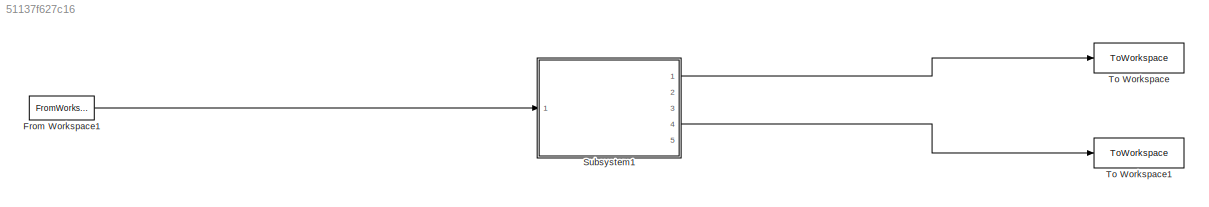
MODEL slx_51137f627c16
KIND model
CONFIG AbsTol = 1e-07
CONFIG EnableMultiTasking = off
CONFIG FixedStep = auto
CONFIG MaxStep = auto
CONFIG MinStep = auto
CONFIG RelTol = 1e-3
CONFIG SampleTimeConstraint = Unconstrained
CONFIG SolverName = ode23t
CONFIG StartTime = 0.0
CONFIG StopTime = 5
WORKSPACE source: mxarray member
WORKSPACE l = 2
WORKSPACE wfb = [0 0 0]
BLOCK [FromWorkspace] From Workspace1
  SampleTime = dt
  VariableName = u_in
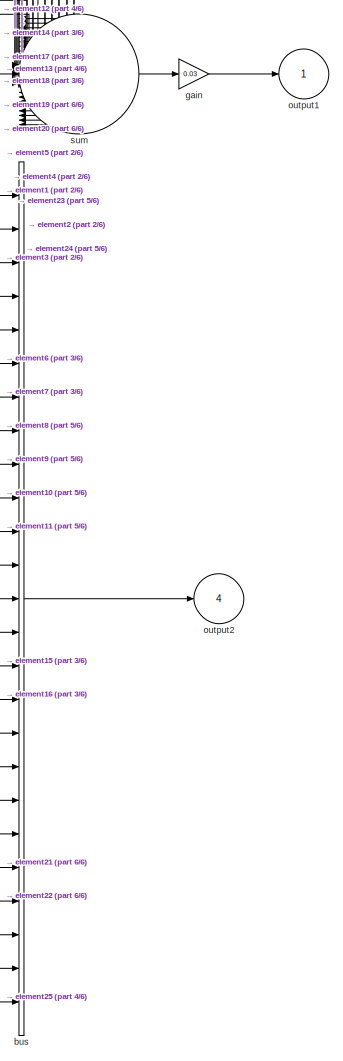
[diagram: Subsystem1 - part 1/6, top right region]
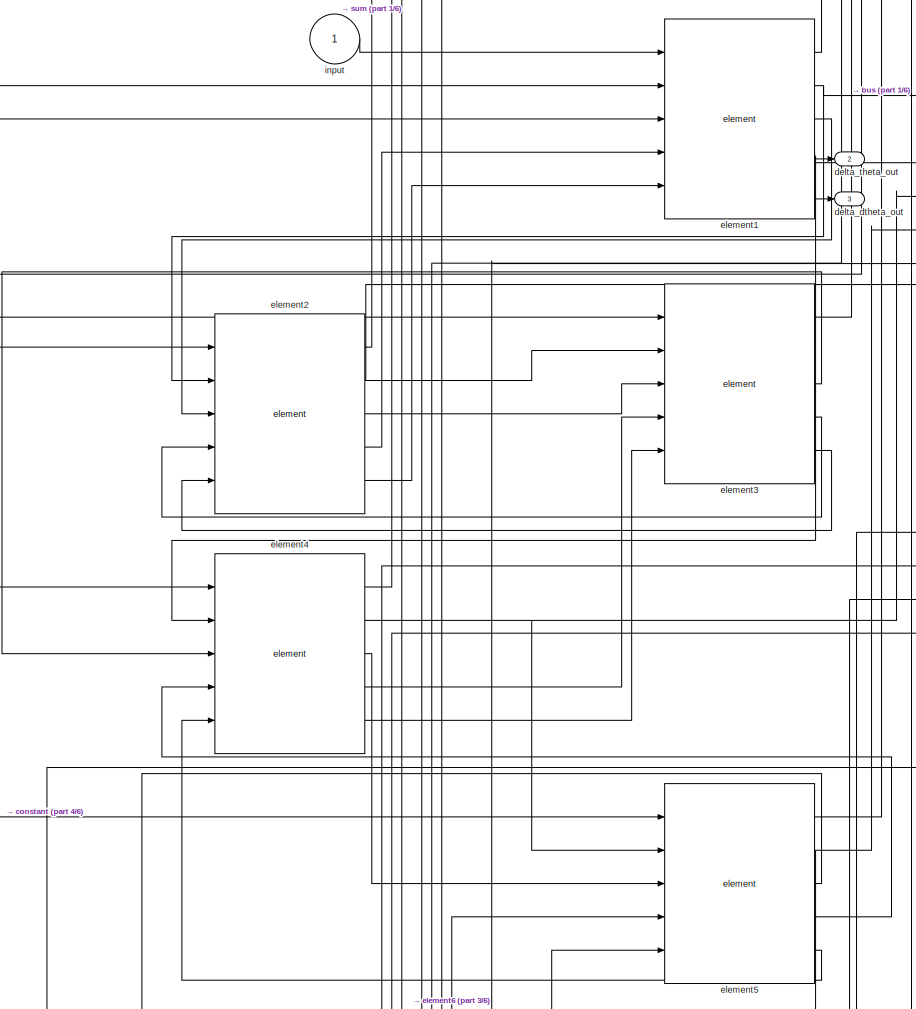
[diagram: Subsystem1 - part 2/6, top center region]
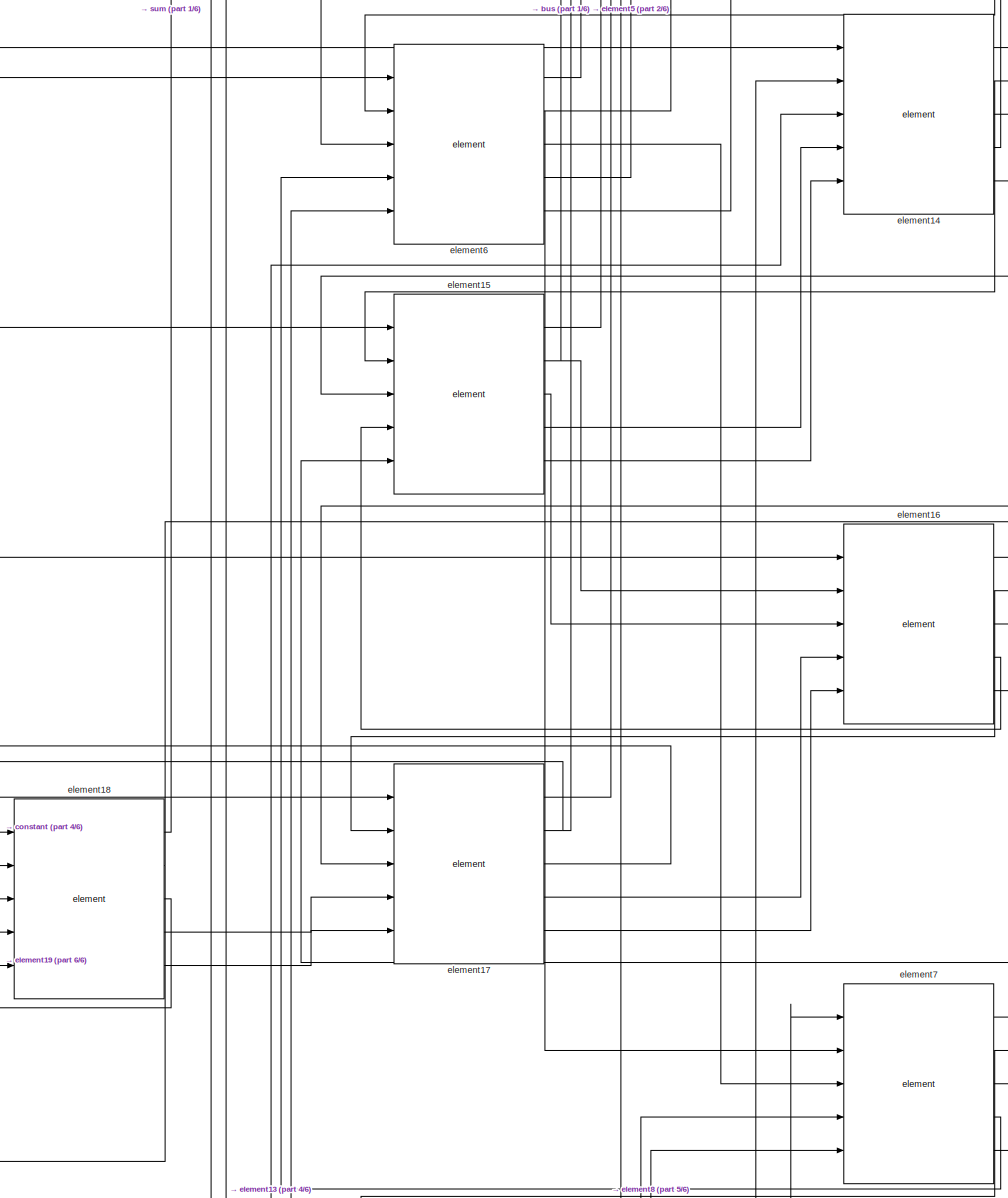
[diagram: Subsystem1 - part 3/6, central region]
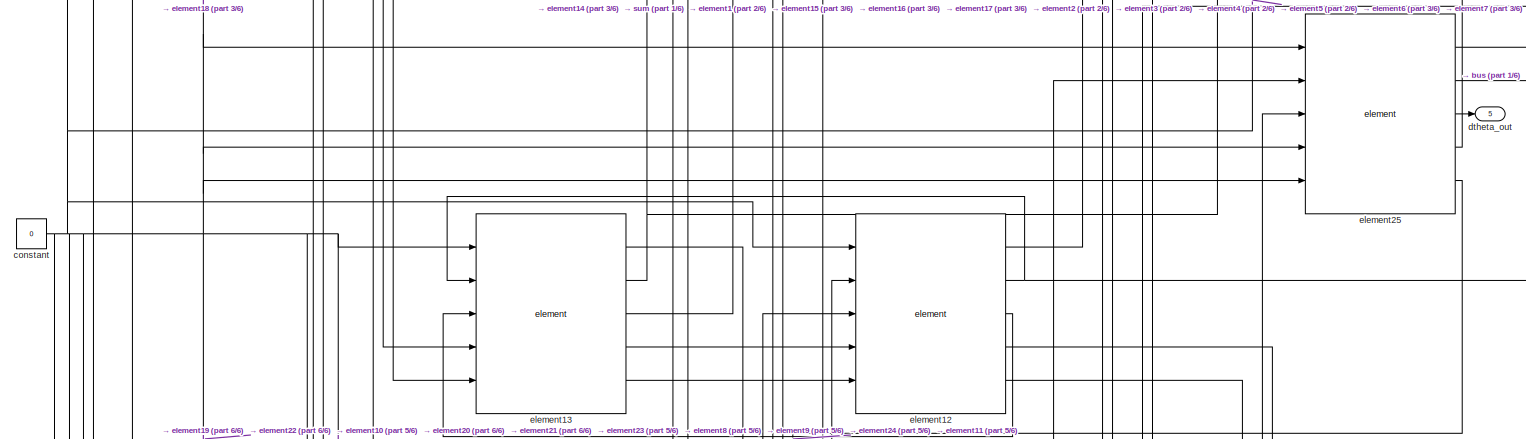
[diagram: Subsystem1 - part 4/6, central region]
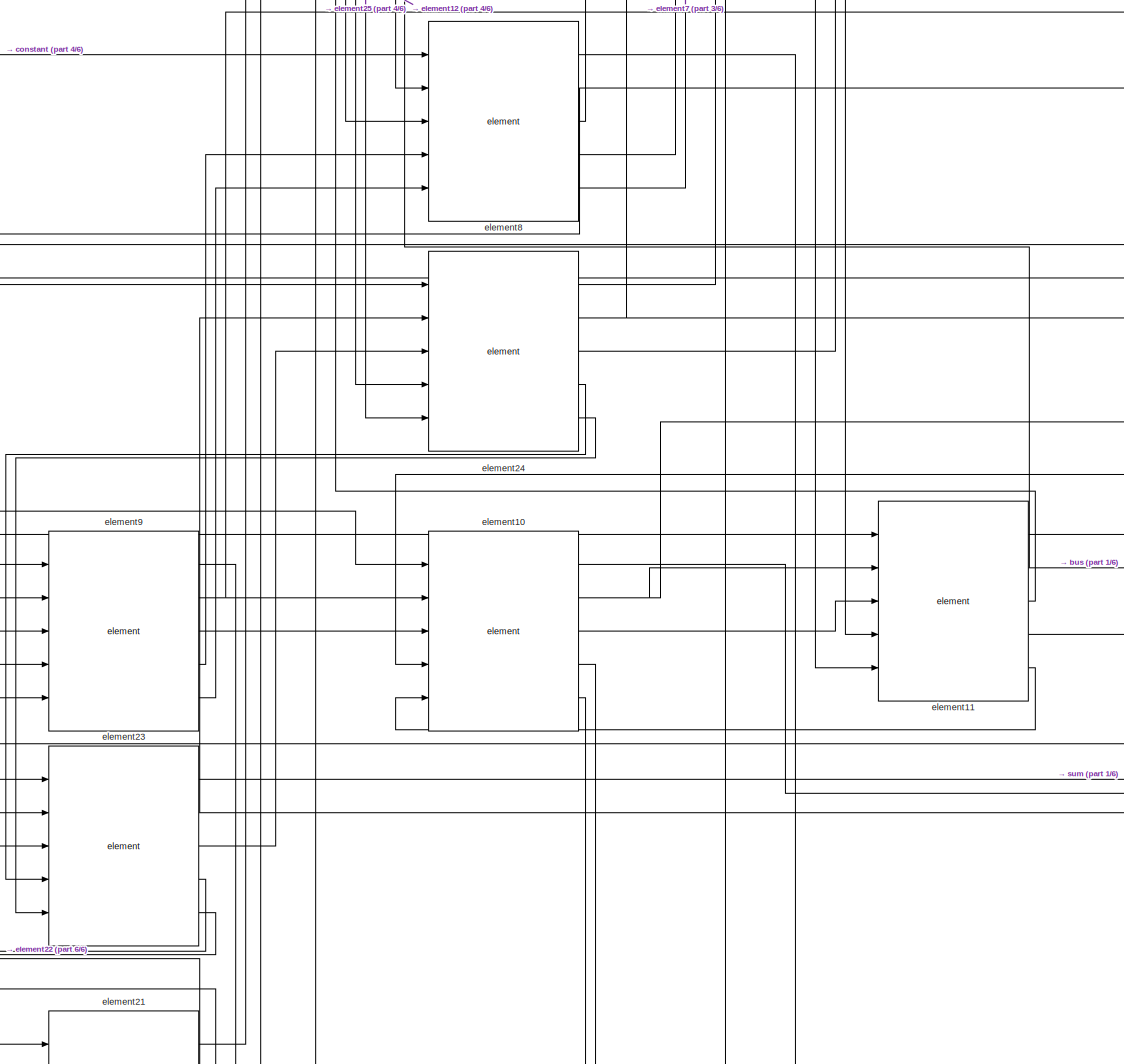
[diagram: Subsystem1 - part 5/6, bottom center region]
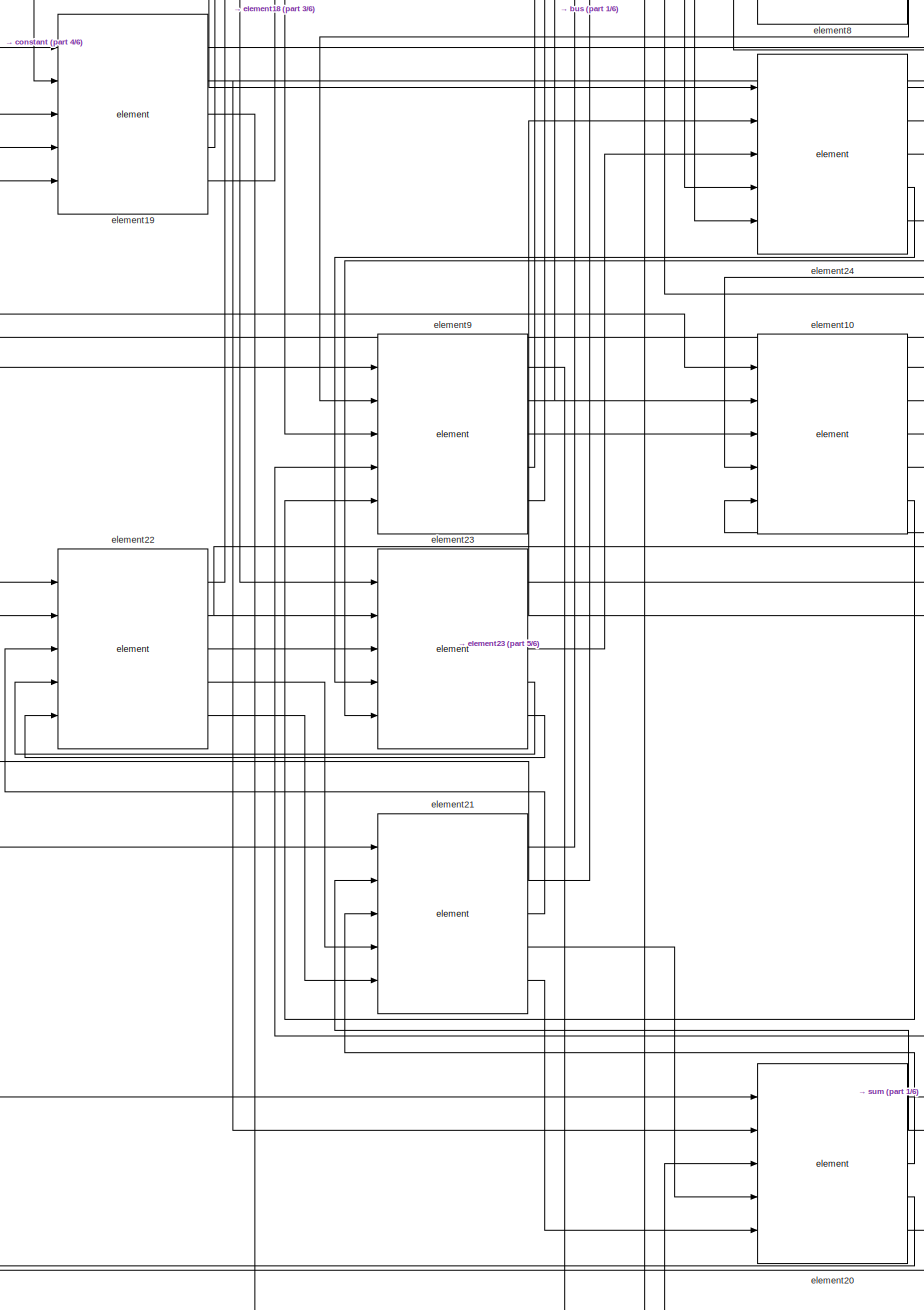
[diagram: Subsystem1 - part 6/6, bottom left region]
BLOCK [SubSystem] Subsystem1
  Ports = [1, 5]
  RequestExecContextInheritance = off
BLOCK [BusCreator] Subsystem1/bus
  DisplayOption = bar
  InheritFromInputs = on
  Inputs = 25
  Ports = [25, 1]
BLOCK [Constant] Subsystem1/constant
  Value = 0
BLOCK [Outport] Subsystem1/delta_dtheta_out
  Port = 3
BLOCK [Outport] Subsystem1/delta_theta_out
  Port = 2
BLOCK [Outport] Subsystem1/dtheta_out
  Port = 5
BLOCK [Reference] Subsystem1/element1  REF=lib_beam/element  (lib defined in slx_f71b63bb8612)
  Ports = [5, 5]
  SourceBlock = lib_beam/element
BLOCK [Reference] Subsystem1/element10  REF=lib_beam/element  (lib defined in slx_f71b63bb8612)
  Ports = [5, 5]
  SourceBlock = lib_beam/element
BLOCK [Reference] Subsystem1/element11  REF=lib_beam/element  (lib defined in slx_f71b63bb8612)
  Ports = [5, 5]
  SourceBlock = lib_beam/element
BLOCK [Reference] Subsystem1/element12  REF=lib_beam/element  (lib defined in slx_f71b63bb8612)
  Ports = [5, 5]
  SourceBlock = lib_beam/element
BLOCK [Reference] Subsystem1/element13  REF=lib_beam/element  (lib defined in slx_f71b63bb8612)
  Ports = [5, 5]
  SourceBlock = lib_beam/element
BLOCK [Reference] Subsystem1/element14  REF=lib_beam/element  (lib defined in slx_f71b63bb8612)
  Ports = [5, 5]
  SourceBlock = lib_beam/element
BLOCK [Reference] Subsystem1/element15  REF=lib_beam/element  (lib defined in slx_f71b63bb8612)
  Ports = [5, 5]
  SourceBlock = lib_beam/element
BLOCK [Reference] Subsystem1/element16  REF=lib_beam/element  (lib defined in slx_f71b63bb8612)
  Ports = [5, 5]
  SourceBlock = lib_beam/element
BLOCK [Reference] Subsystem1/element17  REF=lib_beam/element  (lib defined in slx_f71b63bb8612)
  Ports = [5, 5]
  SourceBlock = lib_beam/element
BLOCK [Reference] Subsystem1/element18  REF=lib_beam/element  (lib defined in slx_f71b63bb8612)
  Ports = [5, 5]
  SourceBlock = lib_beam/element
BLOCK [Reference] Subsystem1/element19  REF=lib_beam/element  (lib defined in slx_f71b63bb8612)
  Ports = [5, 5]
  SourceBlock = lib_beam/element
BLOCK [Reference] Subsystem1/element2  REF=lib_beam/element  (lib defined in slx_f71b63bb8612)
  Ports = [5, 5]
  SourceBlock = lib_beam/element
BLOCK [Reference] Subsystem1/element20  REF=lib_beam/element  (lib defined in slx_f71b63bb8612)
  Ports = [5, 5]
  SourceBlock = lib_beam/element
BLOCK [Reference] Subsystem1/element21  REF=lib_beam/element  (lib defined in slx_f71b63bb8612)
  Ports = [5, 5]
  SourceBlock = lib_beam/element
BLOCK [Reference] Subsystem1/element22  REF=lib_beam/element  (lib defined in slx_f71b63bb8612)
  Ports = [5, 5]
  SourceBlock = lib_beam/element
BLOCK [Reference] Subsystem1/element23  REF=lib_beam/element  (lib defined in slx_f71b63bb8612)
  Ports = [5, 5]
  SourceBlock = lib_beam/element
BLOCK [Reference] Subsystem1/element24  REF=lib_beam/element  (lib defined in slx_f71b63bb8612)
  Ports = [5, 5]
  SourceBlock = lib_beam/element
BLOCK [Reference] Subsystem1/element25  REF=lib_beam/element  (lib defined in slx_f71b63bb8612)
  Ports = [5, 5]
  SourceBlock = lib_beam/element
BLOCK [Reference] Subsystem1/element3  REF=lib_beam/element  (lib defined in slx_f71b63bb8612)
  Ports = [5, 5]
  SourceBlock = lib_beam/element
BLOCK [Reference] Subsystem1/element4  REF=lib_beam/element  (lib defined in slx_f71b63bb8612)
  Ports = [5, 5]
  SourceBlock = lib_beam/element
BLOCK [Reference] Subsystem1/element5  REF=lib_beam/element  (lib defined in slx_f71b63bb8612)
  Ports = [5, 5]
  SourceBlock = lib_beam/element
BLOCK [Reference] Subsystem1/element6  REF=lib_beam/element  (lib defined in slx_f71b63bb8612)
  Ports = [5, 5]
  SourceBlock = lib_beam/element
BLOCK [Reference] Subsystem1/element7  REF=lib_beam/element  (lib defined in slx_f71b63bb8612)
  Ports = [5, 5]
  SourceBlock = lib_beam/element
BLOCK [Reference] Subsystem1/element8  REF=lib_beam/element  (lib defined in slx_f71b63bb8612)
  Ports = [5, 5]
  SourceBlock = lib_beam/element
BLOCK [Reference] Subsystem1/element9  REF=lib_beam/element  (lib defined in slx_f71b63bb8612)
  Ports = [5, 5]
  SourceBlock = lib_beam/element
BLOCK [Gain] Subsystem1/gain
  Gain = 0.03
BLOCK [Inport] Subsystem1/input
BLOCK [Outport] Subsystem1/output1
BLOCK [Outport] Subsystem1/output2
  Port = 4
BLOCK [Sum] Subsystem1/sum
  Inputs = 25
  Ports = [25, 1]
BLOCK [ToWorkspace] To Workspace
  FixptAsFi = on
  MaxDataPoints = inf
  Ports = [1]
  SampleTime = dt
  SaveFormat = Timeseries
  VariableName = y
BLOCK [ToWorkspace] To Workspace1
  FixptAsFi = on
  MaxDataPoints = inf
  Ports = [1]
  SampleTime = dt
  SaveFormat = Timeseries
  VariableName = theta
LINE From Workspace1:1 -> Subsystem1:1
LINE Subsystem1/bus:1 -> Subsystem1/output2:1
NET Subsystem1/constant:1 -> Subsystem1/element10:1, Subsystem1/element11:1, Subsystem1/element12:1, Subsystem1/element13:1, Subsystem1/element14:1, Subsystem1/element15:1, Subsystem1/element16:1, Subsystem1/element17:1, Subsystem1/element18:1, Subsystem1/element19:1, Subsystem1/element1:2, Subsystem1/element1:3, Subsystem1/element20:1, Subsystem1/element21:1, Subsystem1/element22:1, Subsystem1/element23:1, Subsystem1/element24:1, Subsystem1/element25:1, Subsystem1/element25:4, Subsystem1/element25:5, Subsystem1/element2:1, Subsystem1/element3:1, Subsystem1/element4:1, Subsystem1/element5:1, Subsystem1/element6:1, Subsystem1/element7:1, Subsystem1/element8:1, Subsystem1/element9:1
LINE Subsystem1/element10:1 -> Subsystem1/sum:10
NET Subsystem1/element10:2 -> Subsystem1/bus:10, Subsystem1/element11:2
LINE Subsystem1/element10:3 -> Subsystem1/element11:3
LINE Subsystem1/element10:4 -> Subsystem1/element9:4
LINE Subsystem1/element10:5 -> Subsystem1/element9:5
LINE Subsystem1/element11:1 -> Subsystem1/sum:11
NET Subsystem1/element11:2 -> Subsystem1/bus:11, Subsystem1/element12:2
LINE Subsystem1/element11:3 -> Subsystem1/element12:3
LINE Subsystem1/element11:4 -> Subsystem1/element10:4
LINE Subsystem1/element11:5 -> Subsystem1/element10:5
LINE Subsystem1/element12:1 -> Subsystem1/sum:12
NET Subsystem1/element12:2 -> Subsystem1/bus:12, Subsystem1/element13:2
LINE Subsystem1/element12:3 -> Subsystem1/element13:3
LINE Subsystem1/element12:4 -> Subsystem1/element11:4
LINE Subsystem1/element12:5 -> Subsystem1/element11:5
LINE Subsystem1/element13:1 -> Subsystem1/sum:13
NET Subsystem1/element13:2 -> Subsystem1/bus:13, Subsystem1/element14:2
LINE Subsystem1/element13:3 -> Subsystem1/element14:3
LINE Subsystem1/element13:4 -> Subsystem1/element12:4
LINE Subsystem1/element13:5 -> Subsystem1/element12:5
LINE Subsystem1/element14:1 -> Subsystem1/sum:14
NET Subsystem1/element14:2 -> Subsystem1/bus:14, Subsystem1/element15:2
LINE Subsystem1/element14:3 -> Subsystem1/element15:3
LINE Subsystem1/element14:4 -> Subsystem1/element13:4
LINE Subsystem1/element14:5 -> Subsystem1/element13:5
LINE Subsystem1/element15:1 -> Subsystem1/sum:15
NET Subsystem1/element15:2 -> Subsystem1/bus:15, Subsystem1/element16:2
LINE Subsystem1/element15:3 -> Subsystem1/element16:3
LINE Subsystem1/element15:4 -> Subsystem1/element14:4
LINE Subsystem1/element15:5 -> Subsystem1/element14:5
LINE Subsystem1/element16:1 -> Subsystem1/sum:16
NET Subsystem1/element16:2 -> Subsystem1/bus:16, Subsystem1/element17:2
LINE Subsystem1/element16:3 -> Subsystem1/element17:3
LINE Subsystem1/element16:4 -> Subsystem1/element15:4
LINE Subsystem1/element16:5 -> Subsystem1/element15:5
LINE Subsystem1/element17:1 -> Subsystem1/sum:17
NET Subsystem1/element17:2 -> Subsystem1/bus:17, Subsystem1/element18:2
LINE Subsystem1/element17:3 -> Subsystem1/element18:3
LINE Subsystem1/element17:4 -> Subsystem1/element16:4
LINE Subsystem1/element17:5 -> Subsystem1/element16:5
LINE Subsystem1/element18:1 -> Subsystem1/sum:18
NET Subsystem1/element18:2 -> Subsystem1/bus:18, Subsystem1/element19:2
LINE Subsystem1/element18:3 -> Subsystem1/element19:3
LINE Subsystem1/element18:4 -> Subsystem1/element17:4
LINE Subsystem1/element18:5 -> Subsystem1/element17:5
LINE Subsystem1/element19:1 -> Subsystem1/sum:19
NET Subsystem1/element19:2 -> Subsystem1/bus:19, Subsystem1/element20:2
LINE Subsystem1/element19:3 -> Subsystem1/element20:3
LINE Subsystem1/element19:4 -> Subsystem1/element18:4
LINE Subsystem1/element19:5 -> Subsystem1/element18:5
LINE Subsystem1/element1:1 -> Subsystem1/sum:1
NET Subsystem1/element1:2 -> Subsystem1/bus:1, Subsystem1/element2:2
LINE Subsystem1/element1:3 -> Subsystem1/element2:3
LINE Subsystem1/element1:4 -> Subsystem1/delta_theta_out:1
LINE Subsystem1/element1:5 -> Subsystem1/delta_dtheta_out:1
LINE Subsystem1/element20:1 -> Subsystem1/sum:20
NET Subsystem1/element20:2 -> Subsystem1/bus:20, Subsystem1/element21:2
LINE Subsystem1/element20:3 -> Subsystem1/element21:3
LINE Subsystem1/element20:4 -> Subsystem1/element19:4
LINE Subsystem1/element20:5 -> Subsystem1/element19:5
LINE Subsystem1/element21:1 -> Subsystem1/sum:21
NET Subsystem1/element21:2 -> Subsystem1/bus:21, Subsystem1/element22:2
LINE Subsystem1/element21:3 -> Subsystem1/element22:3
LINE Subsystem1/element21:4 -> Subsystem1/element20:4
LINE Subsystem1/element21:5 -> Subsystem1/element20:5
LINE Subsystem1/element22:1 -> Subsystem1/sum:22
NET Subsystem1/element22:2 -> Subsystem1/bus:22, Subsystem1/element23:2
LINE Subsystem1/element22:3 -> Subsystem1/element23:3
LINE Subsystem1/element22:4 -> Subsystem1/element21:4
LINE Subsystem1/element22:5 -> Subsystem1/element21:5
LINE Subsystem1/element23:1 -> Subsystem1/sum:23
NET Subsystem1/element23:2 -> Subsystem1/bus:23, Subsystem1/element24:2
LINE Subsystem1/element23:3 -> Subsystem1/element24:3
LINE Subsystem1/element23:4 -> Subsystem1/element22:4
LINE Subsystem1/element23:5 -> Subsystem1/element22:5
LINE Subsystem1/element24:1 -> Subsystem1/sum:24
NET Subsystem1/element24:2 -> Subsystem1/bus:24, Subsystem1/element25:2
LINE Subsystem1/element24:3 -> Subsystem1/element25:3
LINE Subsystem1/element24:4 -> Subsystem1/element23:4
LINE Subsystem1/element24:5 -> Subsystem1/element23:5
LINE Subsystem1/element25:1 -> Subsystem1/sum:25
LINE Subsystem1/element25:2 -> Subsystem1/bus:25
LINE Subsystem1/element25:3 -> Subsystem1/dtheta_out:1
LINE Subsystem1/element25:4 -> Subsystem1/element24:4
LINE Subsystem1/element25:5 -> Subsystem1/element24:5
LINE Subsystem1/element2:1 -> Subsystem1/sum:2
NET Subsystem1/element2:2 -> Subsystem1/bus:2, Subsystem1/element3:2
LINE Subsystem1/element2:3 -> Subsystem1/element3:3
LINE Subsystem1/element2:4 -> Subsystem1/element1:4
LINE Subsystem1/element2:5 -> Subsystem1/element1:5
LINE Subsystem1/element3:1 -> Subsystem1/sum:3
NET Subsystem1/element3:2 -> Subsystem1/bus:3, Subsystem1/element4:2
LINE Subsystem1/element3:3 -> Subsystem1/element4:3
LINE Subsystem1/element3:4 -> Subsystem1/element2:4
LINE Subsystem1/element3:5 -> Subsystem1/element2:5
LINE Subsystem1/element4:1 -> Subsystem1/sum:4
NET Subsystem1/element4:2 -> Subsystem1/bus:4, Subsystem1/element5:2
LINE Subsystem1/element4:3 -> Subsystem1/element5:3
LINE Subsystem1/element4:4 -> Subsystem1/element3:4
LINE Subsystem1/element4:5 -> Subsystem1/element3:5
LINE Subsystem1/element5:1 -> Subsystem1/sum:5
NET Subsystem1/element5:2 -> Subsystem1/bus:5, Subsystem1/element6:2
LINE Subsystem1/element5:3 -> Subsystem1/element6:3
LINE Subsystem1/element5:4 -> Subsystem1/element4:4
LINE Subsystem1/element5:5 -> Subsystem1/element4:5
LINE Subsystem1/element6:1 -> Subsystem1/sum:6
NET Subsystem1/element6:2 -> Subsystem1/bus:6, Subsystem1/element7:2
LINE Subsystem1/element6:3 -> Subsystem1/element7:3
LINE Subsystem1/element6:4 -> Subsystem1/element5:4
LINE Subsystem1/element6:5 -> Subsystem1/element5:5
LINE Subsystem1/element7:1 -> Subsystem1/sum:7
NET Subsystem1/element7:2 -> Subsystem1/bus:7, Subsystem1/element8:2
LINE Subsystem1/element7:3 -> Subsystem1/element8:3
LINE Subsystem1/element7:4 -> Subsystem1/element6:4
LINE Subsystem1/element7:5 -> Subsystem1/element6:5
LINE Subsystem1/element8:1 -> Subsystem1/sum:8
NET Subsystem1/element8:2 -> Subsystem1/bus:8, Subsystem1/element9:2
LINE Subsystem1/element8:3 -> Subsystem1/element9:3
LINE Subsystem1/element8:4 -> Subsystem1/element7:4
LINE Subsystem1/element8:5 -> Subsystem1/element7:5
LINE Subsystem1/element9:1 -> Subsystem1/sum:9
NET Subsystem1/element9:2 -> Subsystem1/bus:9, Subsystem1/element10:2
LINE Subsystem1/element9:3 -> Subsystem1/element10:3
LINE Subsystem1/element9:4 -> Subsystem1/element8:4
LINE Subsystem1/element9:5 -> Subsystem1/element8:5
LINE Subsystem1/gain:1 -> Subsystem1/output1:1
LINE Subsystem1/input:1 -> Subsystem1/element1:1
LINE Subsystem1/sum:1 -> Subsystem1/gain:1
LINE Subsystem1:1 -> To Workspace:1
LINE Subsystem1:4 -> To Workspace1:1
note: NET lines group one-source signal fan-out (src -> all destinations, sorted); 1:1 wires keep LINE
